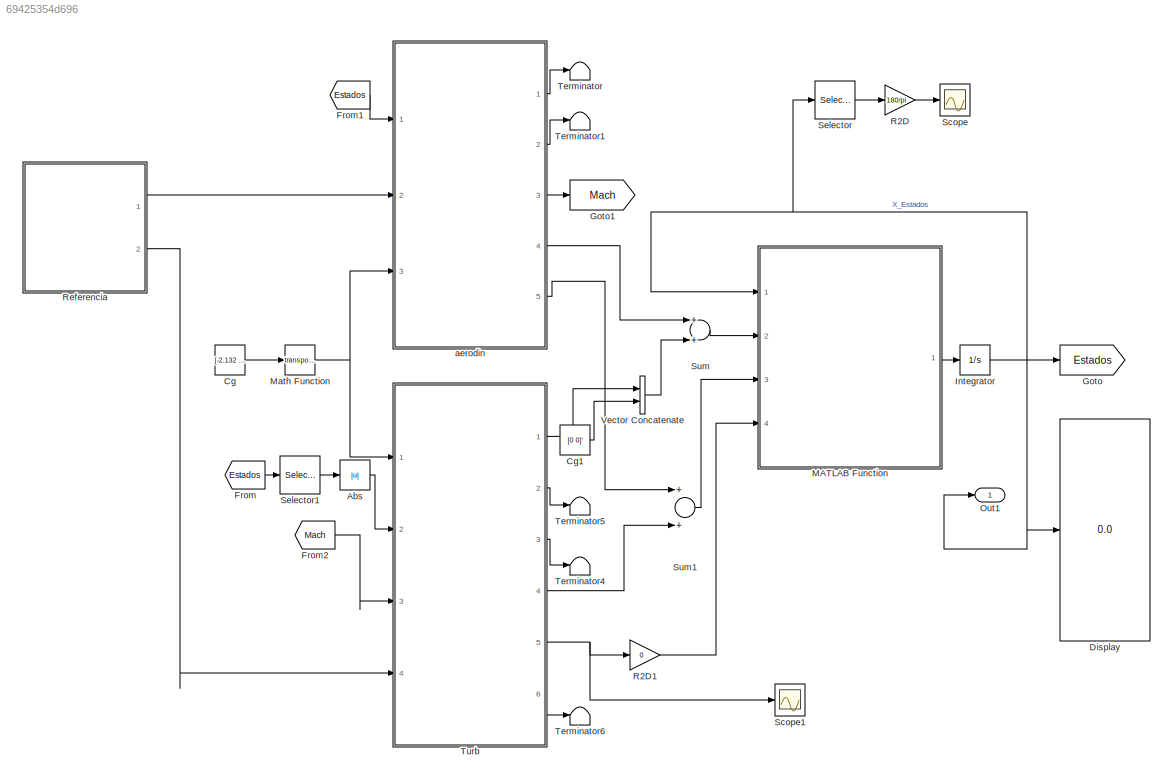
MODEL slx_69425354d696
KIND model
BLOCK [Abs] Abs
  SaturateOnIntegerOverflow = off
BLOCK [Constant] Cg
  Value = [-2.132           0           0]
BLOCK [Constant] Cg1
  Value = [0 0]'
BLOCK [Display] Display
  Decimation = 1
  Ports = [1]
BLOCK [From] From
  GotoTag = Estados
BLOCK [From] From1
  GotoTag = Estados
BLOCK [From] From2
  GotoTag = Mach
BLOCK [Goto] Goto
  GotoTag = Estados
BLOCK [Goto] Goto1
  GotoTag = Mach
BLOCK [Integrator] Integrator
  InitialCondition = [156.55944     0.15954293      33.001765              0     0.20775238              0              0              0              0              0              0          -3000]
  Ports = [1, 1]
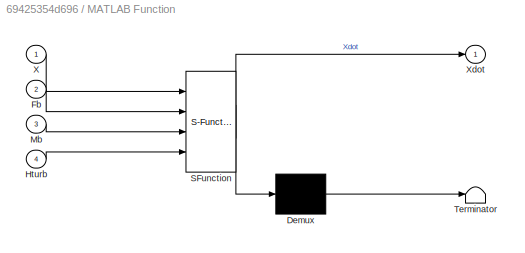
BLOCK [SubSystem] MATLAB Function
  ErrorFcn = Stateflow.Translate.translate
  FunctionWithSeparateData = off
  MaskHideContents = off
  MinAlgLoopOccurrences = off
  Opaque = off
  PermitHierarchicalResolution = ExplicitOnly
  Ports = [4, 1]
  PropExecContextOutsideSubsystem = off
  RTWSystemCode = Auto
  RequestExecContextInheritance = off
  SFBlockType = MATLAB Function
  TreatAsAtomicUnit = on
BLOCK [Demux] MATLAB Function/ Demux 
  Outputs = 1
  Ports = [1, 1]
BLOCK [S-Function] MATLAB Function/ SFunction 
  EnableBusSupport = on
  FunctionName = sf_sfun
  Parameters = Aux_Modelo
  PortCounts = [4 2]
  Ports = [4, 2]
  Tag = Stateflow S-Function EQmovSimulink 2
BLOCK [Terminator] MATLAB Function/ Terminator 
BLOCK [Inport] MATLAB Function/Fb
  IconDisplay = Port number
  Port = 2
BLOCK [Inport] MATLAB Function/Hturb
  IconDisplay = Port number
  Port = 4
BLOCK [Inport] MATLAB Function/Mb
  IconDisplay = Port number
  Port = 3
BLOCK [Inport] MATLAB Function/X
  IconDisplay = Port number
BLOCK [Outport] MATLAB Function/Xdot
  IconDisplay = Port number
BLOCK [Math] Math Function
  Operator = transpose
  Ports = [1, 1]
BLOCK [Outport] Out1
  IconDisplay = Port number
BLOCK [Gain] R2D
  Gain = 180/pi
  OutDataTypeStr = Inherit: Inherit via internal rule
  ParamDataTypeStr = Inherit: Inherit via internal rule
  SaturateOnIntegerOverflow = off
BLOCK [Gain] R2D1
  Gain = 0
  OutDataTypeStr = Inherit: Inherit via internal rule
  ParamDataTypeStr = Inherit: Inherit via internal rule
  SaturateOnIntegerOverflow = off
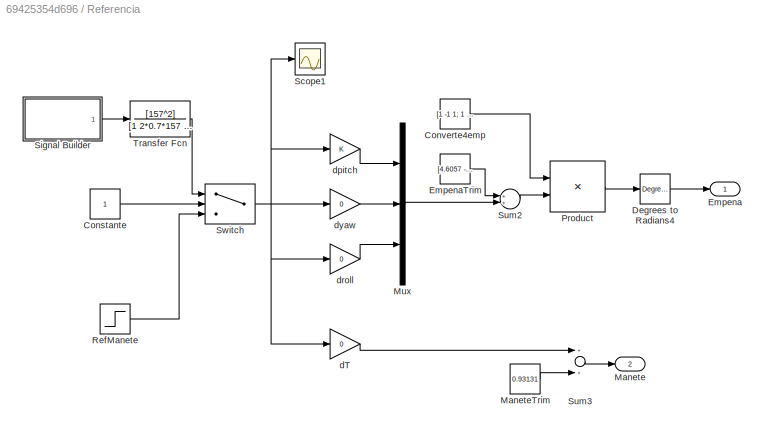
BLOCK [SubSystem] Referencia
  FunctionWithSeparateData = off
  MaskHideContents = off
  MinAlgLoopOccurrences = off
  Opaque = off
  Ports = [0, 2]
  PropExecContextOutsideSubsystem = off
  RTWSystemCode = Auto
  RequestExecContextInheritance = off
BLOCK [Constant] Referencia/Constante
BLOCK [Constant] Referencia/Converte4emp
  Value = [1 -1 1; 1 1 1; -1 1 1; -1 -1 1]
BLOCK [Reference] Referencia/Degrees to Radians4  REF=simulink_extras/Transformations/Degrees to
Radians
  Ports = [1, 1]
  SourceBlock = simulink_extras/Transformations/Degrees to\nRadians
  SourceType = DegreesToRadians
BLOCK [Outport] Referencia/Empena
  IconDisplay = Port number
BLOCK [Constant] Referencia/EmpenaTrim
  Value = [4.6057   -0.036072  -0.0034937]
BLOCK [Outport] Referencia/Manete
  IconDisplay = Port number
  Port = 2
BLOCK [Constant] Referencia/ManeteTrim
  Value = 0.93131
BLOCK [Mux] Referencia/Mux
  DisplayOption = bar
  Inputs = 3
  Ports = [3, 1]
BLOCK [Product] Referencia/Product
  InputSameDT = off
  Multiplication = Matrix(*)
  OutDataTypeStr = Inherit: Inherit via internal rule
  Ports = [2, 1]
  RndMeth = Floor
  SaturateOnIntegerOverflow = off
BLOCK [Step] Referencia/RefManete
  After = 0.05
  SampleTime = 0
BLOCK [Scope] Referencia/Scope1
  DataFormat = StructureWithTime
  Floating = off
  NumInputPorts = 1
  Ports = [1]
  SampleTime = 0
  ShowLegends = off
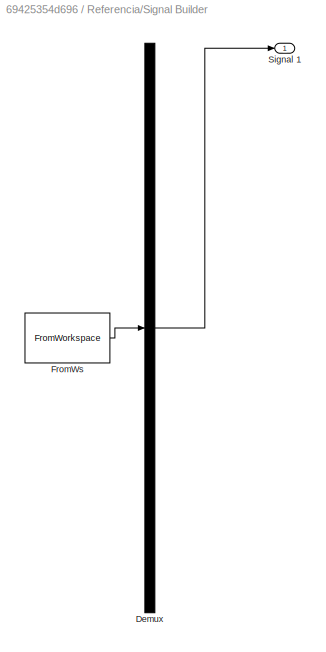
BLOCK [SubSystem] Referencia/Signal Builder
  ClipboardFcn = sigbuilder_block('clipboard');
  CloseFcn = sigbuilder_block('close');
  ContinueFcn = sigbuilder_block('continue')
  CopyFcn = sigbuilder_block('copy');
  DeleteFcn = sigbuilder_block('delete');
  FunctionWithSeparateData = off
  LoadFcn = sigbuilder_block('load');
  MaskHideContents = on
  MinAlgLoopOccurrences = off
  ModelCloseFcn = sigbuilder_block('modelClose');
  NameChangeFcn = sigbuilder_block('namechange');
  Opaque = off
  OpenFcn = sigbuilder_block('open',[6 28.5 1248 693 ]);
  PauseFcn = sigbuilder_block('pause')
  Ports = [0, 1]
  PreSaveFcn = sigbuilder_block('preSave');
  PropExecContextOutsideSubsystem = off
  RTWSystemCode = Auto
  RequestExecContextInheritance = off
  StartFcn = sigbuilder_block('start');
  StopFcn = sigbuilder_block('stop');
  Tag = STV Subsys
BLOCK [Demux] Referencia/Signal Builder/Demux
  Outputs = 1
  Ports = [1, 1]
  Tag = STV Demux
BLOCK [FromWorkspace] Referencia/Signal Builder/FromWs
  SampleTime = 0
  Tag = STV FromWs
  VariableName = tuvar
  ZeroCross = on
BLOCK [Outport] Referencia/Signal Builder/Signal 1
  IconDisplay = Port number
  Tag = STV Outport
BLOCK [Sum] Referencia/Sum2
  InputSameDT = off
  OutDataTypeStr = Inherit: Inherit via internal rule
  Ports = [2, 1]
  SaturateOnIntegerOverflow = off
BLOCK [Sum] Referencia/Sum3
  InputSameDT = off
  OutDataTypeStr = Inherit: Inherit via internal rule
  Ports = [2, 1]
  SaturateOnIntegerOverflow = off
BLOCK [Switch] Referencia/Switch
  InputSameDT = off
  SaturateOnIntegerOverflow = off
BLOCK [TransferFcn] Referencia/Transfer Fcn
  Denominator = [1 2*0.7*157 157^2]
  Numerator = [157^2]
BLOCK [Gain] Referencia/dT
  Gain = 0
  OutDataTypeStr = Inherit: Inherit via internal rule
  ParamDataTypeStr = Inherit: Inherit via internal rule
  SaturateOnIntegerOverflow = off
BLOCK [Gain] Referencia/dpitch
  OutDataTypeStr = Inherit: Inherit via internal rule
  ParamDataTypeStr = Inherit: Inherit via internal rule
  SaturateOnIntegerOverflow = off
BLOCK [Gain] Referencia/droll
  Gain = 0
  OutDataTypeStr = Inherit: Inherit via internal rule
  ParamDataTypeStr = Inherit: Inherit via internal rule
  SaturateOnIntegerOverflow = off
BLOCK [Gain] Referencia/dyaw
  Gain = 0
  OutDataTypeStr = Inherit: Inherit via internal rule
  ParamDataTypeStr = Inherit: Inherit via internal rule
  SaturateOnIntegerOverflow = off
BLOCK [Scope] Scope
  DataFormat = StructureWithTime
  Floating = off
  LimitDataPoints = off
  NumInputPorts = 1
  Ports = [1]
  SampleTime = 0
  SaveName = ScopeData1
  ShowLegends = off
BLOCK [Scope] Scope1
  DataFormat = StructureWithTime
  Floating = off
  LimitDataPoints = off
  NumInputPorts = 1
  Ports = [1]
  SampleTime = 0
  SaveName = ScopeData2
  ShowLegends = off
  ZoomMode = yonly
BLOCK [Selector] Selector
  IndexOptions = Index vector (dialog)
  Indices = [4]
  InputPortWidth = 12
  OutputSizes = 1
  Ports = [1, 1]
BLOCK [Selector] Selector1
  IndexOptions = Index vector (dialog)
  Indices = [12]
  InputPortWidth = 12
  OutputSizes = 1
  Ports = [1, 1]
BLOCK [Sum] Sum
  InputSameDT = off
  OutDataTypeStr = Inherit: Inherit via internal rule
  Ports = [2, 1]
  SaturateOnIntegerOverflow = off
BLOCK [Sum] Sum1
  InputSameDT = off
  OutDataTypeStr = Inherit: Inherit via internal rule
  Ports = [2, 1]
  SaturateOnIntegerOverflow = off
BLOCK [Terminator] Terminator
BLOCK [Terminator] Terminator1
BLOCK [Terminator] Terminator4
BLOCK [Terminator] Terminator5
BLOCK [Terminator] Terminator6
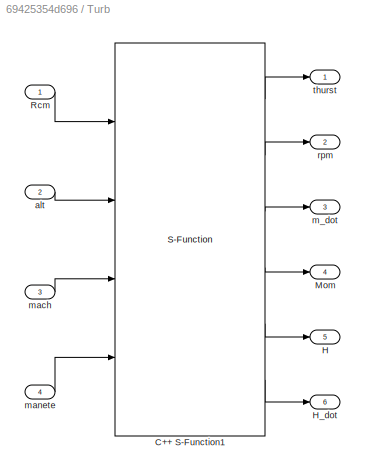
BLOCK [SubSystem] Turb
  FunctionWithSeparateData = off
  MaskHideContents = off
  MinAlgLoopOccurrences = off
  Opaque = off
  Ports = [4, 6]
  PropExecContextOutsideSubsystem = off
  RTWSystemCode = Auto
  RequestExecContextInheritance = off
  TreatAsAtomicUnit = on
BLOCK [S-Function] Turb/C++ S-Function1
  EnableBusSupport = off
  FunctionName = turb_sf
  Ports = [4, 6]
BLOCK [Outport] Turb/H
  IconDisplay = Port number
  Port = 5
BLOCK [Outport] Turb/H_dot
  IconDisplay = Port number
  Port = 6
BLOCK [Outport] Turb/Mom
  IconDisplay = Port number
  Port = 4
BLOCK [Inport] Turb/Rcm
  IconDisplay = Port number
BLOCK [Inport] Turb/alt
  IconDisplay = Port number
  Port = 2
BLOCK [Outport] Turb/m_dot
  IconDisplay = Port number
  Port = 3
BLOCK [Inport] Turb/mach
  IconDisplay = Port number
  Port = 3
BLOCK [Inport] Turb/manete
  IconDisplay = Port number
  Port = 4
BLOCK [Outport] Turb/rpm
  IconDisplay = Port number
  Port = 2
BLOCK [Outport] Turb/thurst
  IconDisplay = Port number
BLOCK [Concatenate] Vector Concatenate
  Ports = [2, 1]
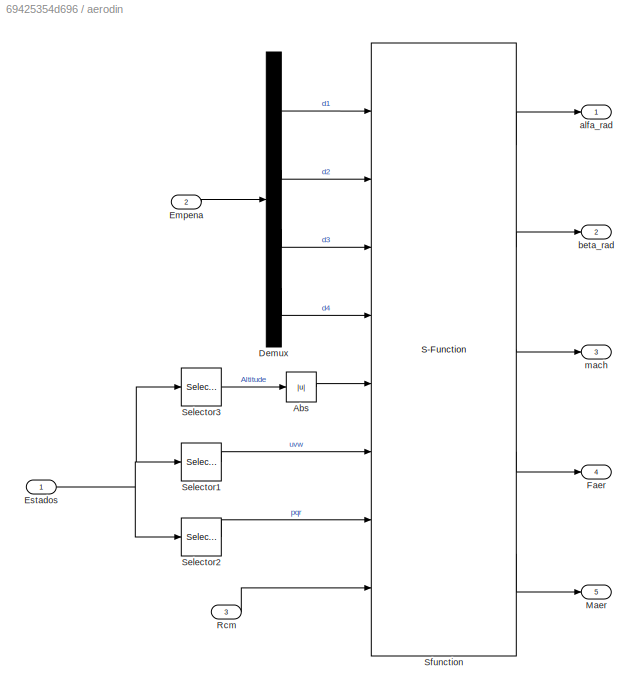
BLOCK [SubSystem] aerodin
  FunctionWithSeparateData = off
  MaskHideContents = off
  MinAlgLoopOccurrences = off
  Opaque = off
  Ports = [3, 5]
  PropExecContextOutsideSubsystem = off
  RTWSystemCode = Auto
  RequestExecContextInheritance = off
  TreatAsAtomicUnit = on
BLOCK [Abs] aerodin/Abs
  SaturateOnIntegerOverflow = off
BLOCK [Demux] aerodin/Demux
  DisplayOption = bar
  Ports = [1, 4]
BLOCK [Inport] aerodin/Empena
  IconDisplay = Port number
  Port = 2
BLOCK [Inport] aerodin/Estados
  IconDisplay = Port number
BLOCK [Outport] aerodin/Faer
  IconDisplay = Port number
  Port = 4
BLOCK [Outport] aerodin/Maer
  IconDisplay = Port number
  Port = 5
BLOCK [Inport] aerodin/Rcm
  IconDisplay = Port number
  Port = 3
BLOCK [Selector] aerodin/Selector1
  IndexOptions = Index vector (dialog)
  Indices = [1 2 3]
  InputPortWidth = 12
  OutputSizes = 1
  Ports = [1, 1]
BLOCK [Selector] aerodin/Selector2
  IndexOptions = Index vector (dialog)
  Indices = [7 8 9]
  InputPortWidth = 12
  OutputSizes = 1
  Ports = [1, 1]
BLOCK [Selector] aerodin/Selector3
  IndexOptions = Index vector (dialog)
  Indices = [12]
  InputPortWidth = 12
  OutputSizes = 1
  Ports = [1, 1]
BLOCK [S-Function] aerodin/Sfunction
  EnableBusSupport = off
  FunctionName = aer8_cruz_sf
  Ports = [8, 5]
BLOCK [Outport] aerodin/alfa_rad
  IconDisplay = Port number
BLOCK [Outport] aerodin/beta_rad
  IconDisplay = Port number
  Port = 2
BLOCK [Outport] aerodin/mach
  IconDisplay = Port number
  Port = 3
LINE Abs:1 -> Turb:2
LINE Cg1:1 -> Vector Concatenate:2
LINE Cg:1 -> Math Function:1
LINE From1:1 -> aerodin:1
LINE From2:1 -> Turb:3
LINE From:1 -> Selector1:1
NET Integrator:1 -> Display:1, Goto:1, MATLAB Function:1, Out1:1, Selector:1
LINE MATLAB Function:1 -> Integrator:1
NET Math Function:1 -> Turb:1, aerodin:3
LINE R2D1:1 -> MATLAB Function:4
LINE R2D:1 -> Scope:1
LINE Referencia/Constante:1 -> Referencia/Switch:2
LINE Referencia/Converte4emp:1 -> Referencia/Product:1
LINE Referencia/Degrees to Radians4:1 -> Referencia/Empena:1
LINE Referencia/EmpenaTrim:1 -> Referencia/Sum2:1
LINE Referencia/ManeteTrim:1 -> Referencia/Sum3:2
LINE Referencia/Mux:1 -> Referencia/Sum2:2
LINE Referencia/Product:1 -> Referencia/Degrees to Radians4:1
LINE Referencia/RefManete:1 -> Referencia/Switch:3
LINE Referencia/Signal Builder/Demux:1 -> Referencia/Signal Builder/Signal 1:1
LINE Referencia/Signal Builder/FromWs:1 -> Referencia/Signal Builder/Demux:1
LINE Referencia/Signal Builder:1 -> Referencia/Transfer Fcn:1
LINE Referencia/Sum2:1 -> Referencia/Product:2
LINE Referencia/Sum3:1 -> Referencia/Manete:1
NET Referencia/Switch:1 -> Referencia/Scope1:1, Referencia/dT:1, Referencia/dpitch:1, Referencia/droll:1, Referencia/dyaw:1
LINE Referencia/Transfer Fcn:1 -> Referencia/Switch:1
LINE Referencia/dT:1 -> Referencia/Sum3:1
LINE Referencia/dpitch:1 -> Referencia/Mux:1
LINE Referencia/droll:1 -> Referencia/Mux:3
LINE Referencia/dyaw:1 -> Referencia/Mux:2
LINE Referencia:1 -> aerodin:2
LINE Referencia:2 -> Turb:4
LINE Selector1:1 -> Abs:1
LINE Selector:1 -> R2D:1
LINE Sum1:1 -> MATLAB Function:3
LINE Sum:1 -> MATLAB Function:2
LINE Turb/C++ S-Function1:1 -> Turb/thurst:1
LINE Turb/C++ S-Function1:2 -> Turb/rpm:1
LINE Turb/C++ S-Function1:3 -> Turb/m_dot:1
LINE Turb/C++ S-Function1:4 -> Turb/Mom:1
LINE Turb/C++ S-Function1:5 -> Turb/H:1
LINE Turb/C++ S-Function1:6 -> Turb/H_dot:1
LINE Turb/Rcm:1 -> Turb/C++ S-Function1:1
LINE Turb/alt:1 -> Turb/C++ S-Function1:2
LINE Turb/mach:1 -> Turb/C++ S-Function1:3
LINE Turb/manete:1 -> Turb/C++ S-Function1:4
LINE Turb:1 -> Vector Concatenate:1
LINE Turb:2 -> Terminator5:1
LINE Turb:3 -> Terminator4:1
LINE Turb:4 -> Sum1:2
NET Turb:5 -> R2D1:1, Scope1:1
LINE Turb:6 -> Terminator6:1
LINE Vector Concatenate:1 -> Sum:2
LINE aerodin/Abs:1 -> aerodin/Sfunction:5
LINE aerodin/Demux:1 -> aerodin/Sfunction:1
LINE aerodin/Demux:2 -> aerodin/Sfunction:2
LINE aerodin/Demux:3 -> aerodin/Sfunction:3
LINE aerodin/Demux:4 -> aerodin/Sfunction:4
LINE aerodin/Empena:1 -> aerodin/Demux:1
NET aerodin/Estados:1 -> aerodin/Selector1:1, aerodin/Selector2:1, aerodin/Selector3:1
LINE aerodin/Rcm:1 -> aerodin/Sfunction:8
LINE aerodin/Selector1:1 -> aerodin/Sfunction:6
LINE aerodin/Selector2:1 -> aerodin/Sfunction:7
LINE aerodin/Selector3:1 -> aerodin/Abs:1
LINE aerodin/Sfunction:1 -> aerodin/alfa_rad:1
LINE aerodin/Sfunction:2 -> aerodin/beta_rad:1
LINE aerodin/Sfunction:3 -> aerodin/mach:1
LINE aerodin/Sfunction:4 -> aerodin/Faer:1
LINE aerodin/Sfunction:5 -> aerodin/Maer:1
LINE aerodin:1 -> Terminator:1
LINE aerodin:2 -> Terminator1:1
LINE aerodin:3 -> Goto1:1
LINE aerodin:4 -> Sum:1
LINE aerodin:5 -> Sum1:1
note: NET lines group one-source signal fan-out (src -> all destinations, sorted); 1:1 wires keep LINE
